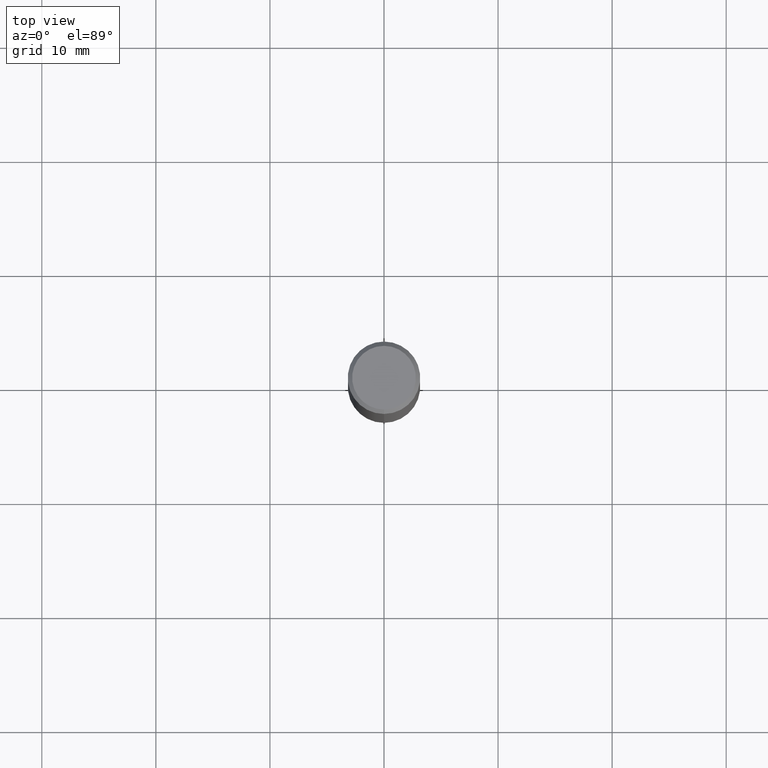
[diagram: clean part render]
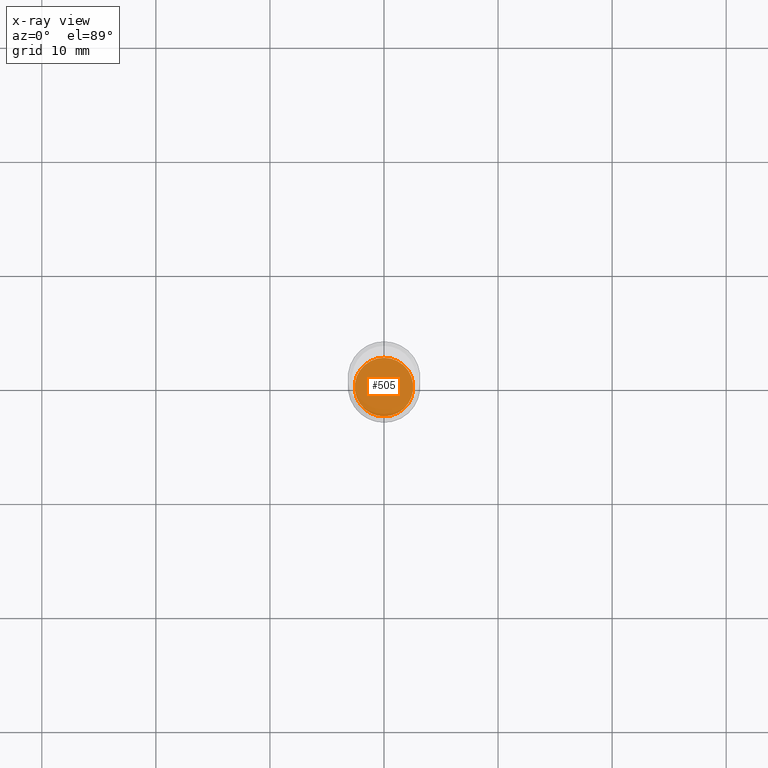
[diagram: x-ray — body ghosted, one internal face saturated and labeled with its STEP entity id]
A machine part, top view, then the same camera in x-ray: the body is ghosted and one INTERNAL B-rep face — a face not visible from any outside direction — is saturated and labeled: STEP entity #505.
In plain terms, the highlighted planar face has unit normal (-0, 0, 1).
Its self-contained STEP definition (entity closure, byte-faithful):
#21 = CARTESIAN_POINT ( 'NONE',  ( 7.197797913250275462E-16, 0.1010499999999935339, -1.875000000000000444 ) ) ;
#40 = EDGE_CURVE ( 'NONE', #481, #357, #277, .T. ) ;
#87 = DIRECTION ( 'NONE',  ( -6.982962677686265922E-15, -1.000000000000000000, 2.703461646377299523E-15 ) ) ;
#98 = DIRECTION ( 'NONE',  ( -2.445288491507693836E-29, 3.491739559724117490E-15, 1.000000000000000000 ) ) ;
#139 = FACE_OUTER_BOUND ( 'NONE', #315, .T. ) ;
#175 = PLANE ( 'NONE',  #253 ) ;
#188 = AXIS2_PLACEMENT_3D ( 'NONE', #291, #98, #87 ) ;
#253 = AXIS2_PLACEMENT_3D ( 'NONE', #411, #459, #331 ) ;
#277 = CIRCLE ( 'NONE', #188, 0.1010500000000000703 ) ;
#280 = ORIENTED_EDGE ( 'NONE', *, *, #489, .F. ) ;
#291 = CARTESIAN_POINT ( 'NONE',  ( 4.584915921576925907E-29, -6.547011674482721378E-15, -1.875000000000000000 ) ) ;
#315 = EDGE_LOOP ( 'NONE', ( #404, #280 ) ) ;
#331 = DIRECTION ( 'NONE',  ( -6.982962677686265922E-15, -1.000000000000000000, 3.491739559724117490E-15 ) ) ;
#337 = CARTESIAN_POINT ( 'NONE',  ( -7.056283785801518238E-16, -0.1010500000000066068, -1.874999999999999778 ) ) ;
#357 = VERTEX_POINT ( 'NONE', #21 ) ;
#371 = DIRECTION ( 'NONE',  ( -2.445288491507693836E-29, 3.491739559724117490E-15, 1.000000000000000000 ) ) ;
#401 = CIRCLE ( 'NONE', #458, 0.1010500000000000703 ) ;
#404 = ORIENTED_EDGE ( 'NONE', *, *, #40, .F. ) ;
#411 = CARTESIAN_POINT ( 'NONE',  ( 4.584915921576925907E-29, -6.547011674482721378E-15, -1.875000000000000000 ) ) ;
#421 = CARTESIAN_POINT ( 'NONE',  ( 4.584915921576925907E-29, -6.547011674482721378E-15, -1.875000000000000000 ) ) ;
#458 = AXIS2_PLACEMENT_3D ( 'NONE', #421, #371, #495 ) ;
#459 = DIRECTION ( 'NONE',  ( -2.445288491507693556E-29, 3.491739559724117490E-15, 1.000000000000000000 ) ) ;
#481 = VERTEX_POINT ( 'NONE', #337 ) ;
#489 = EDGE_CURVE ( 'NONE', #357, #481, #401, .T. ) ;
#495 = DIRECTION ( 'NONE',  ( -6.982962677686265922E-15, -1.000000000000000000, 2.703461646377299523E-15 ) ) ;
#505 = ADVANCED_FACE ( 'NONE', ( #139 ), #175, .F. ) ;